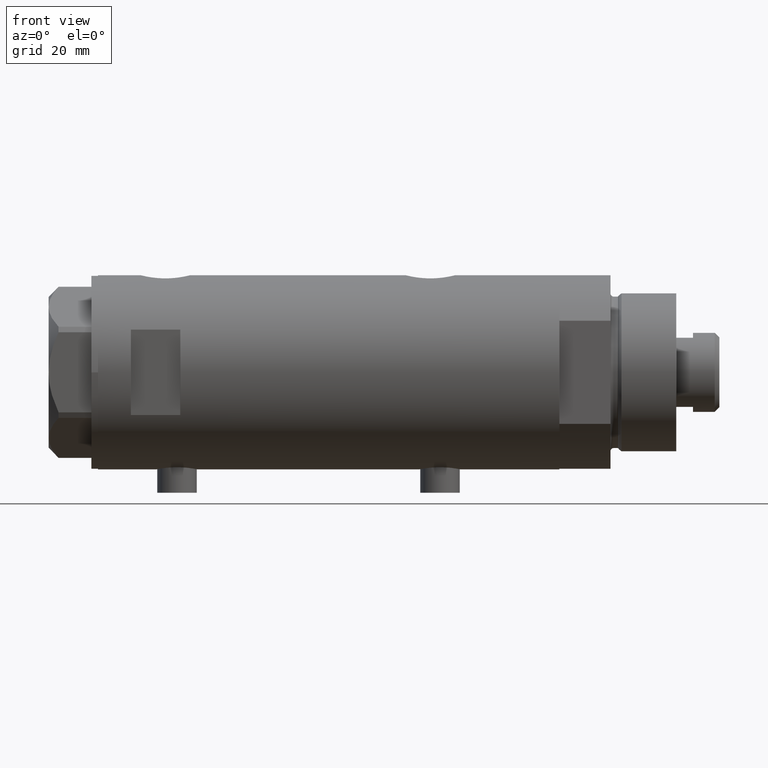
[diagram: clean part render]
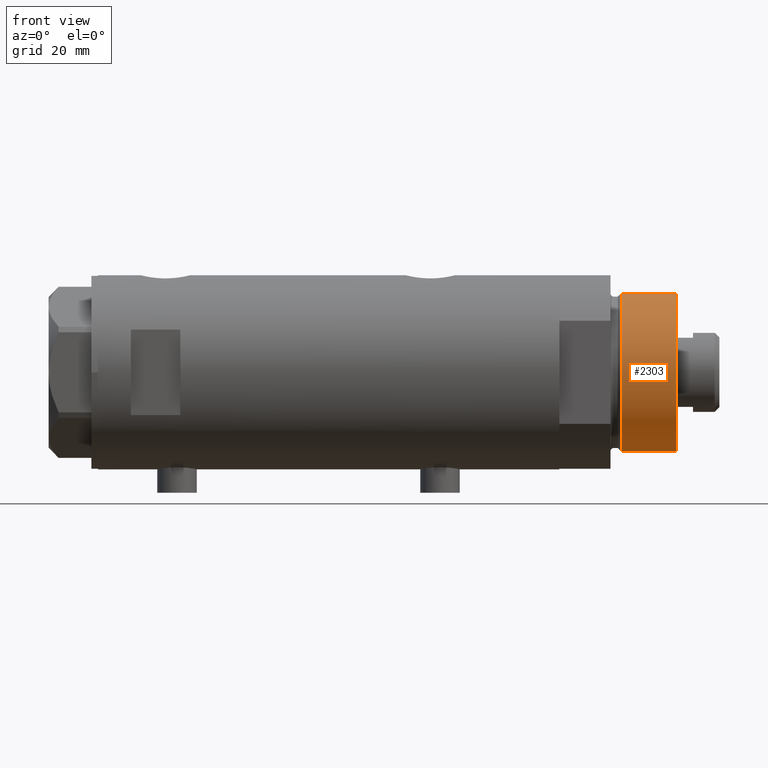
[diagram: same view with one face highlighted and labeled with its STEP entity id]
A machine part, front view. The second image highlights one B-rep face of the part: STEP entity #2303.
In plain terms, the highlighted cylindrical surface (partial cylindrical patch) has radius 24 mm, axis along (-1, -0, 0).
Its self-contained STEP definition (entity closure, byte-faithful):
#44 = DIRECTION ( 'NONE',  ( -0.000000000000000000, -0.000000000000000000, -1.000000000000000000 ) ) ;
#132 = DIRECTION ( 'NONE',  ( 1.000000000000000000, 0.000000000000000000, 0.000000000000000000 ) ) ;
#187 = EDGE_CURVE ( 'NONE', #2267, #3849, #1891, .T. ) ;
#200 = ORIENTED_EDGE ( 'NONE', *, *, #2668, .T. ) ;
#296 = CARTESIAN_POINT ( 'NONE',  ( -24.00000000000000355, 0.000000000000000000, 18.87384048104054202 ) ) ;
#391 = CARTESIAN_POINT ( 'NONE',  ( 24.00000000000000355, 2.939152317953648289E-15, 35.50000000000000711 ) ) ;
#732 = VECTOR ( 'NONE', #44, 1000.000000000000000 ) ;
#937 = FACE_OUTER_BOUND ( 'NONE', #3594, .T. ) ;
#1095 = ORIENTED_EDGE ( 'NONE', *, *, #1226, .T. ) ;
#1115 = AXIS2_PLACEMENT_3D ( 'NONE', #4644, #2413, #4621 ) ;
#1125 = LINE ( 'NONE', #2636, #732 ) ;
#1226 = EDGE_CURVE ( 'NONE', #1578, #4031, #1125, .T. ) ;
#1263 = CYLINDRICAL_SURFACE ( 'NONE', #1115, 24.00000000000000355 ) ;
#1578 = VERTEX_POINT ( 'NONE', #1994 ) ;
#1629 = CARTESIAN_POINT ( 'NONE',  ( 24.00000000000000355, 2.939152317953648289E-15, 18.87384048104054202 ) ) ;
#1891 = LINE ( 'NONE', #391, #3935 ) ;
#1976 = CIRCLE ( 'NONE', #3213, 24.00000000000000355 ) ;
#1994 = CARTESIAN_POINT ( 'NONE',  ( -24.00000000000000355, 0.000000000000000000, 35.50000000000000711 ) ) ;
#2267 = VERTEX_POINT ( 'NONE', #3553 ) ;
#2294 = EDGE_CURVE ( 'NONE', #1578, #2267, #4679, .T. ) ;
#2303 = ADVANCED_FACE ( 'NONE', ( #937 ), #1263, .T. ) ;
#2393 = DIRECTION ( 'NONE',  ( 0.000000000000000000, 0.000000000000000000, 1.000000000000000000 ) ) ;
#2413 = DIRECTION ( 'NONE',  ( -0.000000000000000000, -0.000000000000000000, -1.000000000000000000 ) ) ;
#2636 = CARTESIAN_POINT ( 'NONE',  ( -24.00000000000000355, 0.000000000000000000, 35.50000000000000711 ) ) ;
#2668 = EDGE_CURVE ( 'NONE', #4031, #3849, #1976, .T. ) ;
#3213 = AXIS2_PLACEMENT_3D ( 'NONE', #3378, #3453, #132 ) ;
#3370 = AXIS2_PLACEMENT_3D ( 'NONE', #3905, #2393, #3529 ) ;
#3378 = CARTESIAN_POINT ( 'NONE',  ( 0.000000000000000000, 0.000000000000000000, 18.87384048104054202 ) ) ;
#3453 = DIRECTION ( 'NONE',  ( -0.000000000000000000, -0.000000000000000000, 1.000000000000000000 ) ) ;
#3529 = DIRECTION ( 'NONE',  ( 1.000000000000000000, 0.000000000000000000, 0.000000000000000000 ) ) ;
#3553 = CARTESIAN_POINT ( 'NONE',  ( 24.00000000000000355, 2.939152317953648289E-15, 35.50000000000000711 ) ) ;
#3594 = EDGE_LOOP ( 'NONE', ( #4584, #4078, #1095, #200 ) ) ;
#3758 = DIRECTION ( 'NONE',  ( -0.000000000000000000, -0.000000000000000000, -1.000000000000000000 ) ) ;
#3849 = VERTEX_POINT ( 'NONE', #1629 ) ;
#3905 = CARTESIAN_POINT ( 'NONE',  ( 0.000000000000000000, 0.000000000000000000, 35.50000000000000711 ) ) ;
#3935 = VECTOR ( 'NONE', #3758, 1000.000000000000000 ) ;
#4031 = VERTEX_POINT ( 'NONE', #296 ) ;
#4078 = ORIENTED_EDGE ( 'NONE', *, *, #2294, .F. ) ;
#4584 = ORIENTED_EDGE ( 'NONE', *, *, #187, .F. ) ;
#4621 = DIRECTION ( 'NONE',  ( -1.000000000000000000, 0.000000000000000000, 0.000000000000000000 ) ) ;
#4644 = CARTESIAN_POINT ( 'NONE',  ( 0.000000000000000000, 0.000000000000000000, 35.50000000000000711 ) ) ;
#4679 = CIRCLE ( 'NONE', #3370, 24.00000000000000355 ) ;